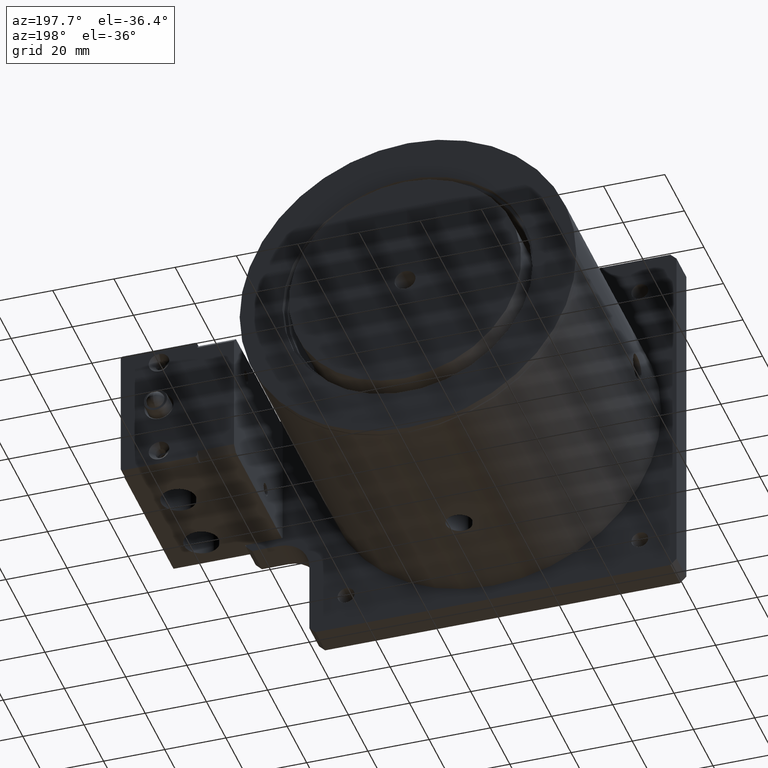
[diagram: clean part render]
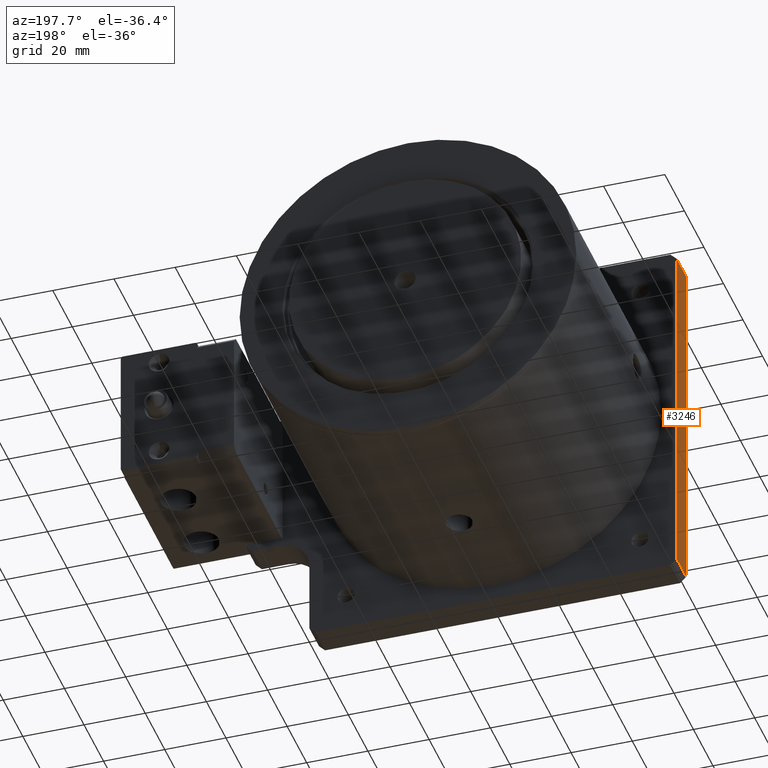
[diagram: same view with one face highlighted and labeled with its STEP entity id]
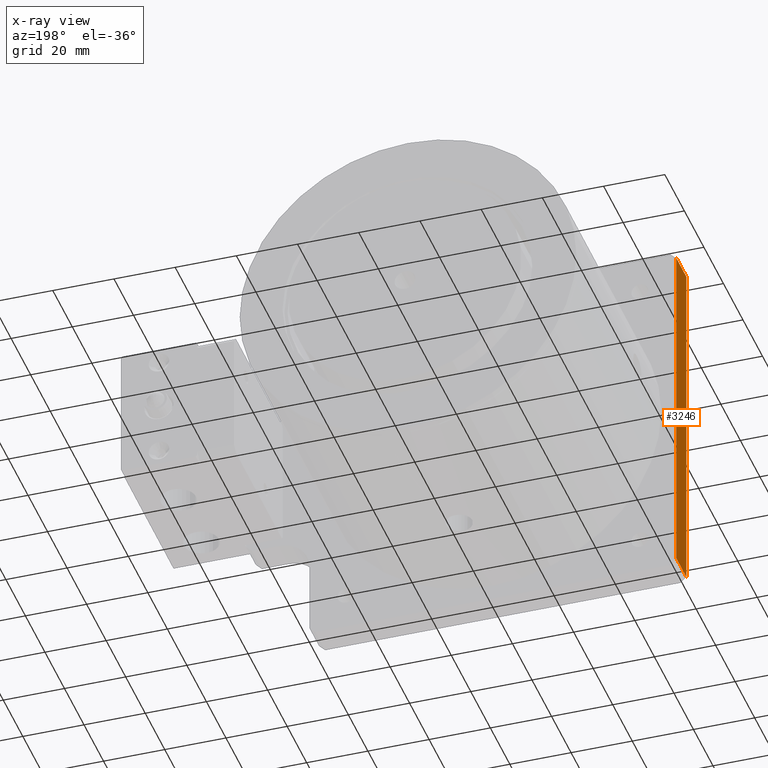
[diagram: x-ray of the same camera — body ghosted, the highlighted face saturated]
A machine part, auxiliary view. The second image highlights one B-rep face of the part: STEP entity #3246.
The next image is the same camera in x-ray: the body ghosted, the highlighted face saturated — about 0% of this face is hidden behind the body in this view.
In plain terms, the highlighted planar face has unit normal (-1, 0, 0).
Its self-contained STEP definition (entity closure, byte-faithful):
#530=DIRECTION('',(0.E0,0.E0,1.E0));
#531=VECTOR('',#530,1.16E2);
#532=CARTESIAN_POINT('',(-7.033E1,0.E0,-5.8E1));
#533=LINE('',#532,#531);
#1410=DIRECTION('',(0.E0,0.E0,1.E0));
#1411=VECTOR('',#1410,1.16E2);
#1412=CARTESIAN_POINT('',(-7.033E1,1.E1,-5.8E1));
#1413=LINE('',#1412,#1411);
#1825=DIRECTION('',(0.E0,-1.E0,0.E0));
#1826=VECTOR('',#1825,1.E1);
#1827=CARTESIAN_POINT('',(-7.033E1,1.E1,-5.8E1));
#1828=LINE('',#1827,#1826);
#1832=DIRECTION('',(0.E0,-1.E0,0.E0));
#1833=VECTOR('',#1832,1.E1);
#1834=CARTESIAN_POINT('',(-7.033E1,1.E1,5.8E1));
#1835=LINE('',#1834,#1833);
#1905=CARTESIAN_POINT('',(-7.033E1,0.E0,-5.8E1));
#1907=VERTEX_POINT('',#1905);
#1911=CARTESIAN_POINT('',(-7.033E1,1.E1,-5.8E1));
#1912=VERTEX_POINT('',#1911);
#1914=CARTESIAN_POINT('',(-7.033E1,0.E0,5.8E1));
#1916=VERTEX_POINT('',#1914);
#1917=CARTESIAN_POINT('',(-7.033E1,1.E1,5.8E1));
#1918=VERTEX_POINT('',#1917);
#3234=CARTESIAN_POINT('',(-7.033E1,0.E0,-6.E1));
#3235=DIRECTION('',(-1.E0,0.E0,0.E0));
#3236=DIRECTION('',(0.E0,0.E0,1.E0));
#3237=AXIS2_PLACEMENT_3D('',#3234,#3235,#3236);
#3238=PLANE('',#3237);
#3239=ORIENTED_EDGE('',*,*,#3229,.F.);
#3240=ORIENTED_EDGE('',*,*,#2707,.T.);
#3242=ORIENTED_EDGE('',*,*,#3241,.T.);
#3243=ORIENTED_EDGE('',*,*,#2109,.F.);
#3244=EDGE_LOOP('',(#3239,#3240,#3242,#3243));
#3245=FACE_OUTER_BOUND('',#3244,.F.);
#2109=EDGE_CURVE('',#1907,#1916,#533,.T.);
#2707=EDGE_CURVE('',#1912,#1918,#1413,.T.);
#3229=EDGE_CURVE('',#1912,#1907,#1828,.T.);
#3241=EDGE_CURVE('',#1918,#1916,#1835,.T.);
#3246=ADVANCED_FACE('',(#3245),#3238,.T.);